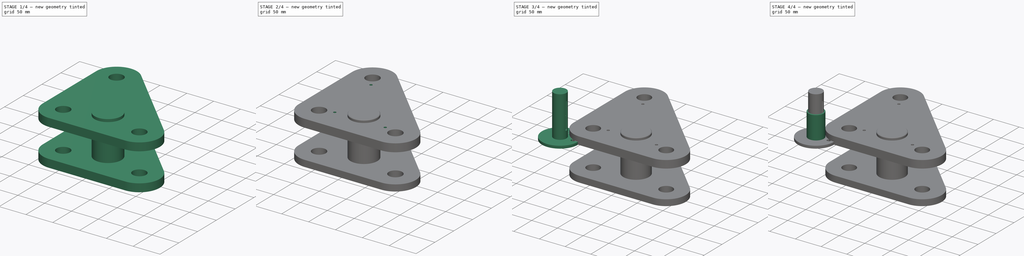
[diagram: build sequence overview — one tinted view per stage of 4, left to right]
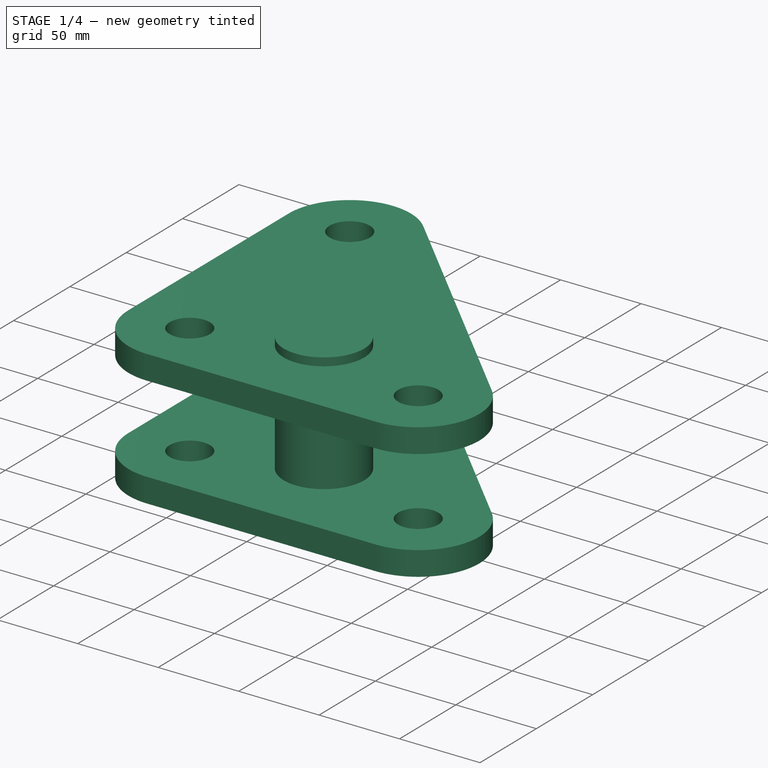
[diagram: stage 1 of 4 — iso view after this stage's code; geometry added in this stage tinted green]
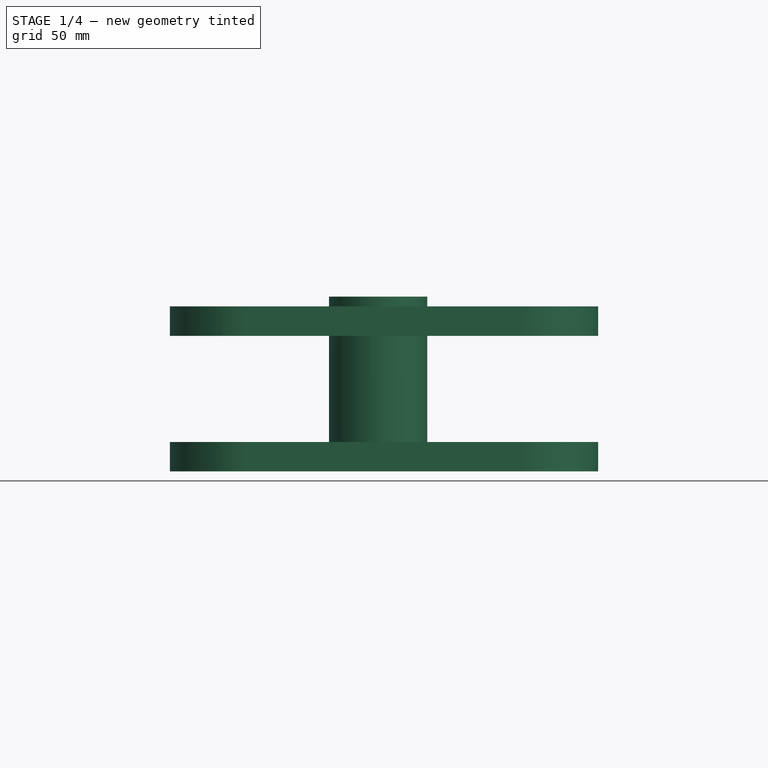
[diagram: stage 1 of 4 — front view after this stage's code; geometry added in this stage tinted green]
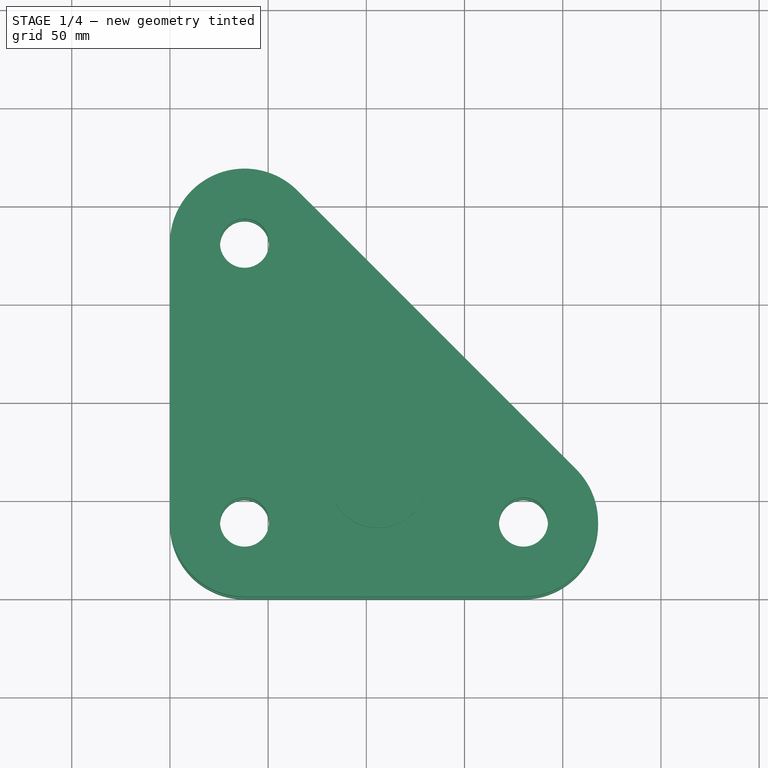
[diagram: stage 1 of 4 — top view after this stage's code; geometry added in this stage tinted green]
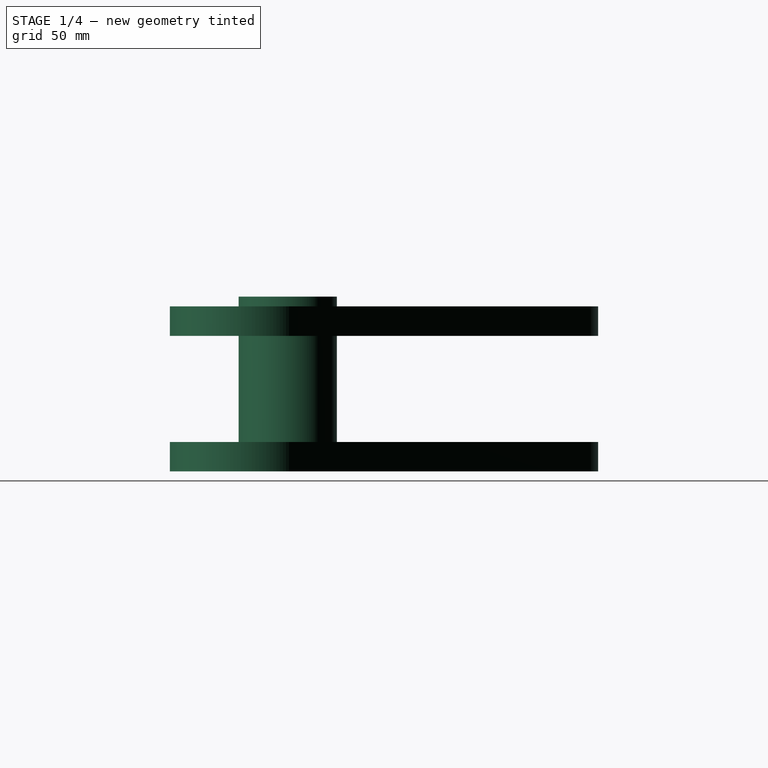
[diagram: stage 1 of 4 — right view after this stage's code; geometry added in this stage tinted green]
FCSTD DOCUMENT  (FreeCAD 0.20R29177 +426 (Git))
Label: hovair2
License: All rights reserved
LicenseURL: http://en.wikipedia.org/wiki/All_rights_reserved
objects: Sketcher::SketchObject×10, PartDesign::Plane×4, PartDesign::Pocket×3, PartDesign::Pad×3, PartDesign::Body×3, PartDesign::Chamfer×2, PartDesign::Hole×2, App::Part×2, PartDesign::Revolution×1, PartDesign::Groove×1, PartDesign::LinearPattern×1
note: 42 computed .brp shape members not serialized (recipe doc carries the construction recipe); baked Part::Feature solids carry a one-line shape summary decoded from their .brp

FEATURE [PartDesign::Body] Body  label="axe"
  Group = -> [Sketch,Revolution,DatumPlane,Sketch001,Groove,DatumPlane001,Sketch002,Pocket,Sketch003,Pocket001,Sketch005,Hole]
  Origin = -> Origin001
  Tip = -> Hole
FEATURE [Sketcher::SketchObject] Sketch006
  FullyConstrained = true
  MapMode = 5
  Support = -> [XY_Plane003]
  sketch-geometry (9):
    g0: ArcOfCircle CenterX=38 CenterY=38 CenterZ=0 NormalX=0 NormalY=0 NormalZ=1 AngleXU=0 Radius=38 StartAngle=3.14159 EndAngle=4.71239
    g1: ArcOfCircle CenterX=180 CenterY=38 CenterZ=0 NormalX=0 NormalY=0 NormalZ=1 AngleXU=0 Radius=38 StartAngle=4.71239 EndAngle=7.06858
    g2: LineSegment StartX=38 StartY=0 StartZ=0 EndX=180 EndY=0 EndZ=0
    g3: ArcOfCircle CenterX=38 CenterY=180 CenterZ=0 NormalX=0 NormalY=0 NormalZ=1 AngleXU=0 Radius=38 StartAngle=0.785398 EndAngle=3.14159
    g4: LineSegment StartX=64.8701 StartY=206.87 StartZ=0 EndX=206.87 EndY=64.8701 EndZ=0
    g5: LineSegment StartX=0 StartY=180 StartZ=0 EndX=0 EndY=38 EndZ=0
    g6: Circle CenterX=38 CenterY=180 CenterZ=0 NormalX=0 NormalY=0 NormalZ=1 AngleXU=0 Radius=12.5
    g7: Circle CenterX=180 CenterY=38 CenterZ=0 NormalX=0 NormalY=0 NormalZ=1 AngleXU=0 Radius=12.5
    g8: Circle CenterX=38 CenterY=38 CenterZ=0 NormalX=0 NormalY=0 NormalZ=1 AngleXU=0 Radius=12.5
  constraints (23):
    c: Radius(g0) = 38
    c: Tangent(g0,g-2) = 1.5708
    c: Tangent(g0,g-1) = -1.5708
    c: Radius(g1) = 38
    c: Tangent(g1,g-1) = -1.5708
    c: Distance(g0,g1) = 142
    c: Coincident(g2,g1)
    c: Coincident(g2,g0)
    c: Radius(g3) = 38
    c: Tangent(g3,g-2) = 1.5708
    c: Tangent(g1,g4) = 1.5708
    c: Tangent(g3,g4) = 1.5708
    c: Coincident(g5,g0)
    c: Coincident(g5,g3)
    c: Coincident(g4,g3)
    c: Coincident(g4,g1)
    c: Distance(g0,g3) = 142
    c: Coincident(g3,g6)
    c: Diameter(g6) = 25
    c: Coincident(g7,g1)
    c: Diameter(g7) = 25
    c: Coincident(g8,g0)
    c: Diameter(g8) = 25
FEATURE [PartDesign::Pad] Pad001  label="base de fixation des axes"
  Direction = (0,0,1)
  Length = 15
  Length2 = 10
  Profile = -> Sketch006
  ReferenceAxis = -> Sketch006 [N_Axis]
  Type = 0
FEATURE [PartDesign::Plane] DatumPlane002
  AttachmentOffset = pos=(0,0,20) rot=(0,0,1;0rad)
  Length = 291.459
  MapMode = 2
  Placement = pos=(0,0,20) rot=(0,0,1;0rad)
  ResizeMode = 0
  Support = -> [Pad001]
  Width = 291.459
FEATURE [Sketcher::SketchObject] Sketch007
  FullyConstrained = true
  MapMode = 5
  Placement = pos=(0,0,20) rot=(0,0,1;0rad)
  Support = -> [DatumPlane002]
  sketch-geometry (2):
    g0: Circle CenterX=106 CenterY=60 CenterZ=0 NormalX=0 NormalY=0 NormalZ=1 AngleXU=0 Radius=25
    g1: GeomPoint X=106 Y=60 Z=0
  constraints (4):
    c: Diameter(g0) = 50
    c: DistanceY(g0) = 60
    c: DistanceX(g0) = 106
    c: Coincident(g1,g0)
FEATURE [PartDesign::Pad] Pad002  label="cylindre entretoise"
  BaseFeature = -> Pad001
  Direction = (0,0,1)
  Length = 74
  Length2 = 10
  Profile = -> Sketch007
  ReferenceAxis = -> Sketch007 [N_Axis]
  Reversed = true
  Type = 0
FEATURE [PartDesign::LinearPattern] LinearPattern  label="base"
  BaseFeature = -> Pad002
  Direction = -> Sketch006 [N_Axis]
  Length = 69
  Occurrences = 2
  Originals = -> [Pad001]
  Reversed = true
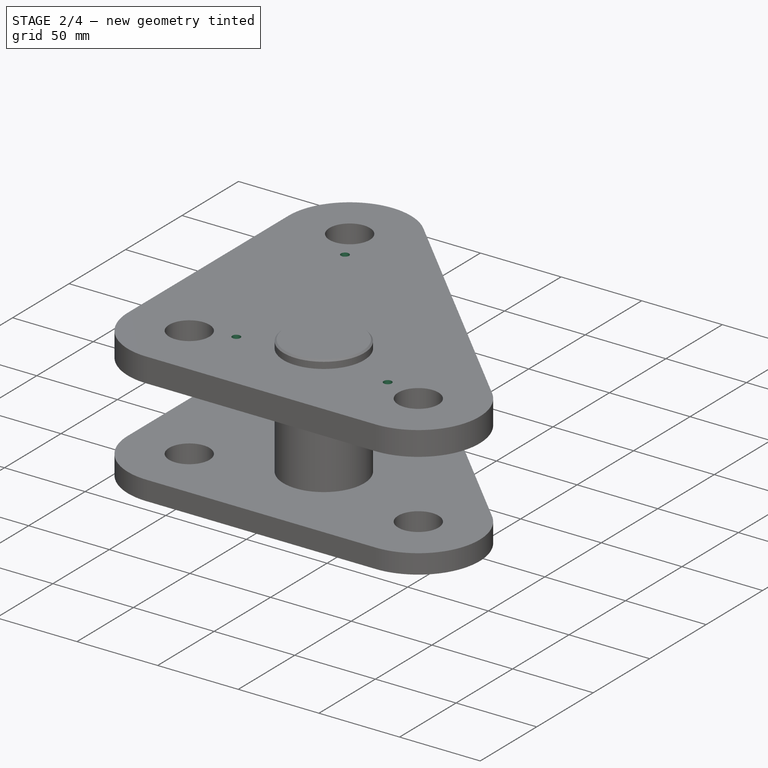
[diagram: stage 2 of 4 — iso view after this stage's code; geometry added in this stage tinted green]
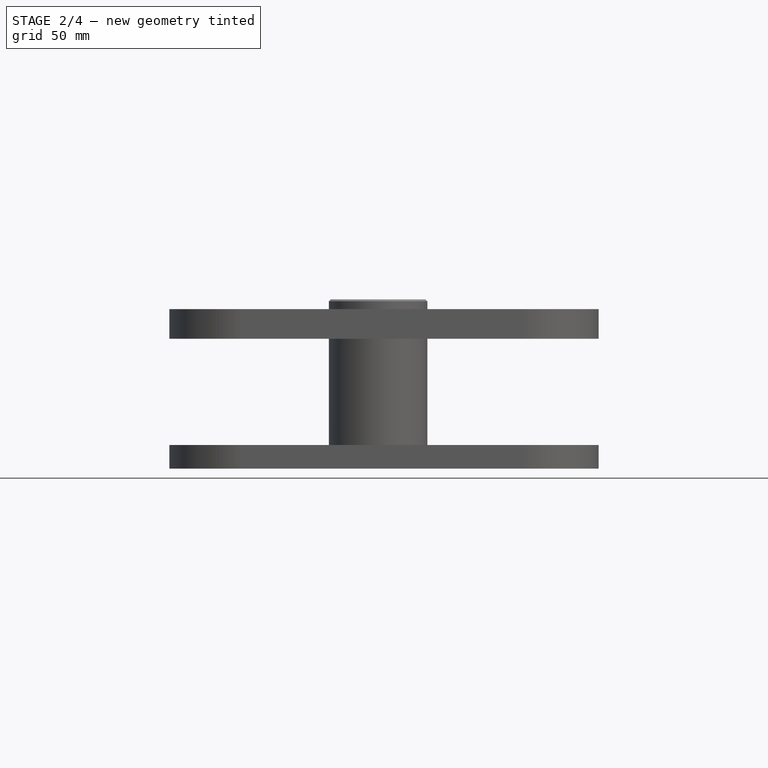
[diagram: stage 2 of 4 — front view after this stage's code; geometry added in this stage tinted green]
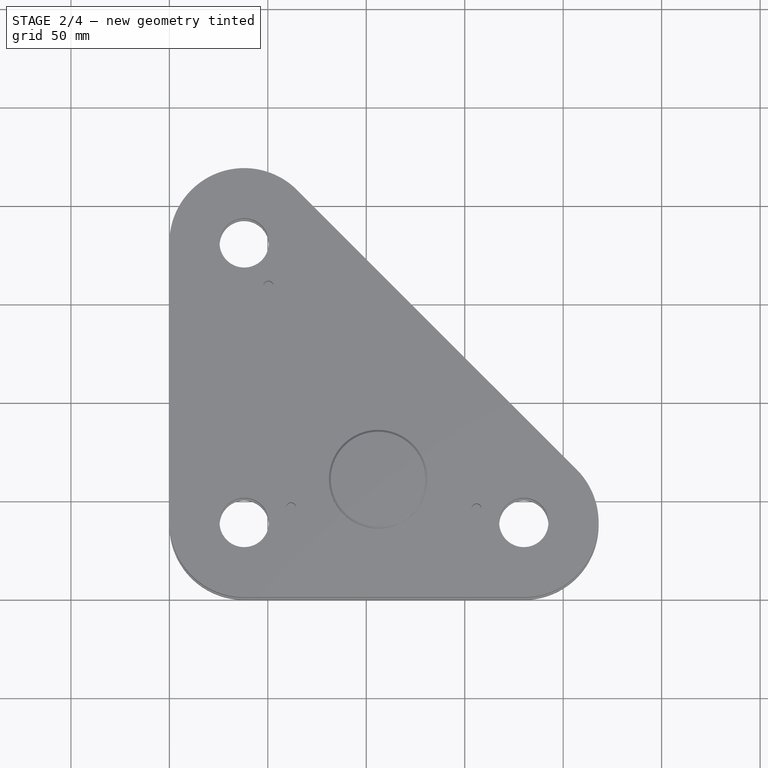
[diagram: stage 2 of 4 — top view after this stage's code; geometry added in this stage tinted green]
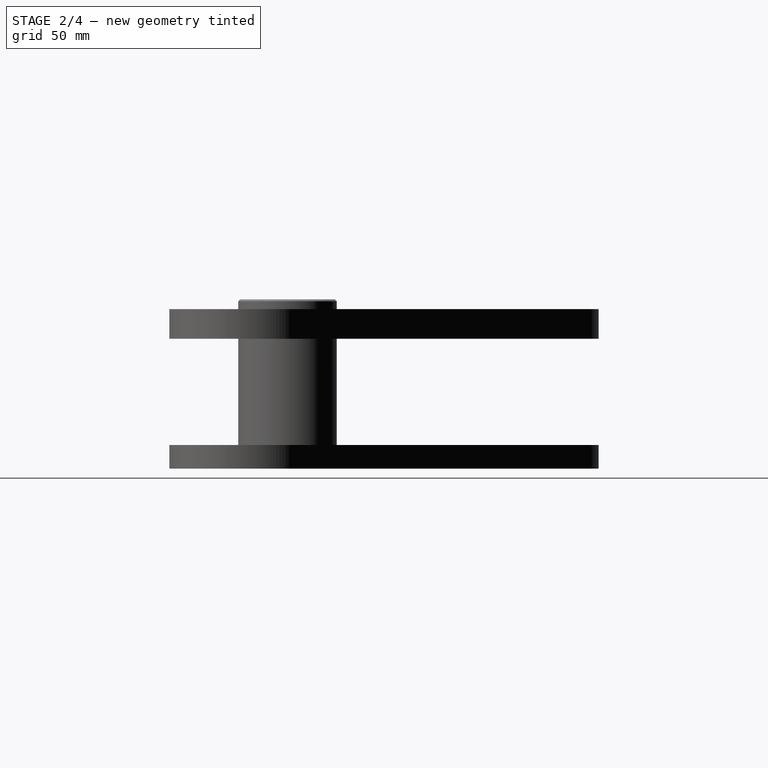
[diagram: stage 2 of 4 — right view after this stage's code; geometry added in this stage tinted green]
FEATURE [PartDesign::Plane] DatumPlane003
  Length = 272.617
  MapMode = 3
  Placement = pos=(0,0,0) rot=(1,0,0;1.5708rad)
  ResizeMode = 0
  Support = -> [LinearPattern]
  Width = 120.734
FEATURE [Sketcher::SketchObject] Sketch008
  FullyConstrained = false
  MapMode = 5
  Placement = pos=(0,0,0) rot=(1,0,0;1.5708rad)
  Support = -> [DatumPlane003]
  sketch-geometry (4):
    g0: LineSegment StartX=-26.3349 StartY=-79.5002 StartZ=0 EndX=225.794 EndY=-79.5002 EndZ=0
    g1: LineSegment StartX=225.794 StartY=-79.5002 StartZ=0 EndX=225.794 EndY=-66 EndZ=0
    g2: LineSegment StartX=225.794 StartY=-66 StartZ=0 EndX=-26.3349 EndY=-66 EndZ=0
    g3: LineSegment StartX=-26.3349 StartY=-66 StartZ=0 EndX=-26.3349 EndY=-79.5002 EndZ=0
  constraints (9):
    c: Coincident(g0,g1)
    c: Coincident(g1,g2)
    c: Coincident(g2,g3)
    c: Coincident(g3,g0)
    c: Horizontal(g0)
    c: Horizontal(g2)
    c: Vertical(g1)
    c: Vertical(g3)
    c: DistanceY(g1) = -66
FEATURE [PartDesign::Pocket] Pocket002  label="reprise epaisseur de la base"
  BaseFeature = -> LinearPattern
  Direction = (0,1,-2e-16)
  Length = 5
  Length2 = 5
  Profile = -> Sketch008
  ReferenceAxis = -> Sketch008 [N_Axis]
  Type = 1
FEATURE [Sketcher::SketchObject] Sketch009
  FullyConstrained = false
  MapMode = 5
  Placement = pos=(0,0,15) rot=(0,0,1;0rad)
  Support = -> [LinearPattern]
  sketch-geometry (9):
    g0: LineSegment StartX=38 StartY=38 StartZ=0 EndX=106 EndY=60 EndZ=0
    g1: LineSegment StartX=106 StartY=60 StartZ=0 EndX=180 EndY=38 EndZ=0
    g2: LineSegment StartX=38 StartY=180 StartZ=0 EndX=106 EndY=60 EndZ=0
    g3: GeomPoint X=50.3253 Y=158.249 Z=0
    g4: GeomPoint X=156.037 Y=45.1243 Z=0
    g5: GeomPoint X=61.7861 Y=45.6955 Z=0
    g6: Circle CenterX=50.3253 CenterY=158.249 CenterZ=0 NormalX=0 NormalY=0 NormalZ=1 AngleXU=0 Radius=3
    g7: Circle CenterX=61.7861 CenterY=45.6955 CenterZ=0 NormalX=0 NormalY=0 NormalZ=1 AngleXU=0 Radius=6.98573
    g8: Circle CenterX=156.037 CenterY=45.1243 CenterZ=0 NormalX=0 NormalY=0 NormalZ=1 AngleXU=0 Radius=7.61805
  constraints (20):
    c: DistanceX(g0) = 38
    c: DistanceY(g0) = 38
    c: DistanceX(g0) = 106
    c: DistanceY(g0) = 60
    c: DistanceY(g1) = 38
    c: DistanceX(g1) = 180
    c: Coincident(g1,g0)
    c: Coincident(g2,g0)
    c: DistanceX(g2) = 38
    c: DistanceY(g2) = 180
    c: PointOnObject(g3,g2)
    c: PointOnObject(g4,g1)
    c: PointOnObject(g5,g0)
    c: Distance(g3,g2) = 25
    c: Distance(g4,g1) = 25
    c: Distance(g0,g5) = 25
    c: Coincident(g6,g3)
    c: Diameter(g6) = 6
    c: Coincident(g7,g5)
    c: Coincident(g8,g4)
FEATURE [PartDesign::Hole] Hole001
  BaseFeature = -> Pocket002
  CustomThreadClearance = 0
  Depth = 16
  DepthType = 0
  Diameter = 5
  DrillForDepth = false
  DrillPoint = 0
  DrillPointAngle = 118
  HoleCutCountersinkAngle = 90
  HoleCutCustomValues = false
  HoleCutDepth = 0
  HoleCutDiameter = 6.7
  HoleCutType = 0
  ModelThread = false
  Profile = -> Sketch009
  Tapered = false
  TaperedAngle = 90
  ThreadClass = 0
  ThreadDepth = 16
  ThreadDepthType = 0
  ThreadDirection = 0
  ThreadFit = 0
  ThreadSize = 14
  ThreadType = 1
  Threaded = true
  UseCustomThreadClearance = false
FEATURE [PartDesign::Chamfer] Chamfer001
  Angle = 45
  Base = -> Hole001 [Edge68]
  BaseFeature = -> Hole001
  ChamferType = 0
  FlipDirection = false
  Size = 1
  Size2 = 1
  SupportTransform = false
  UseAllEdges = false
FEATURE [PartDesign::Body] Body002  label="triangle droit"
  Group = -> [Sketch006,Pad001,DatumPlane002,Sketch007,Pad002,LinearPattern,DatumPlane003,Sketch008,Pocket002,Sketch009,Hole001,Chamfer001]
  Origin = -> Origin003
  Tip = -> Chamfer001
FEATURE [App::Part] Part001
  Group = -> [Body,Body001]
  Origin = -> Origin004
  Placement = pos=(38,180,20) rot=(-0.866025,0.5,0;3.14159rad)
FEATURE [App::Part] Part  label="guidage"
  Group = -> [Body002,Part001]
  Origin = -> Origin
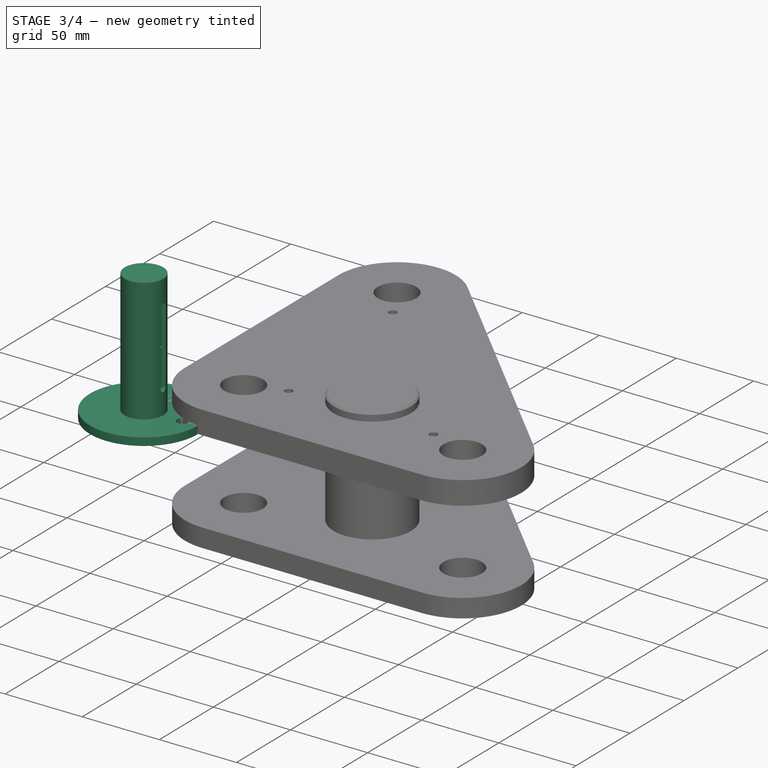
[diagram: stage 3 of 4 — iso view after this stage's code; geometry added in this stage tinted green]
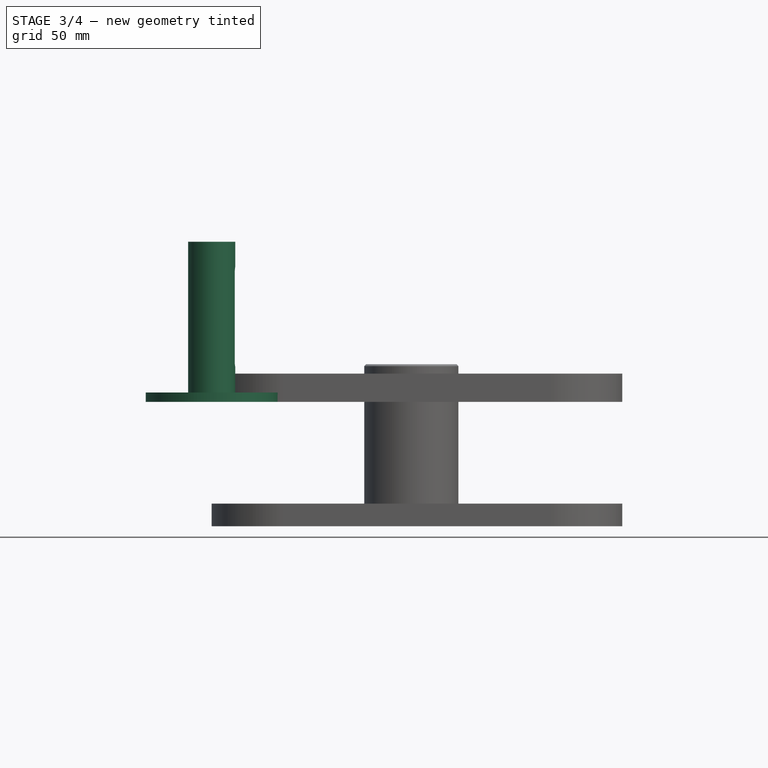
[diagram: stage 3 of 4 — front view after this stage's code; geometry added in this stage tinted green]
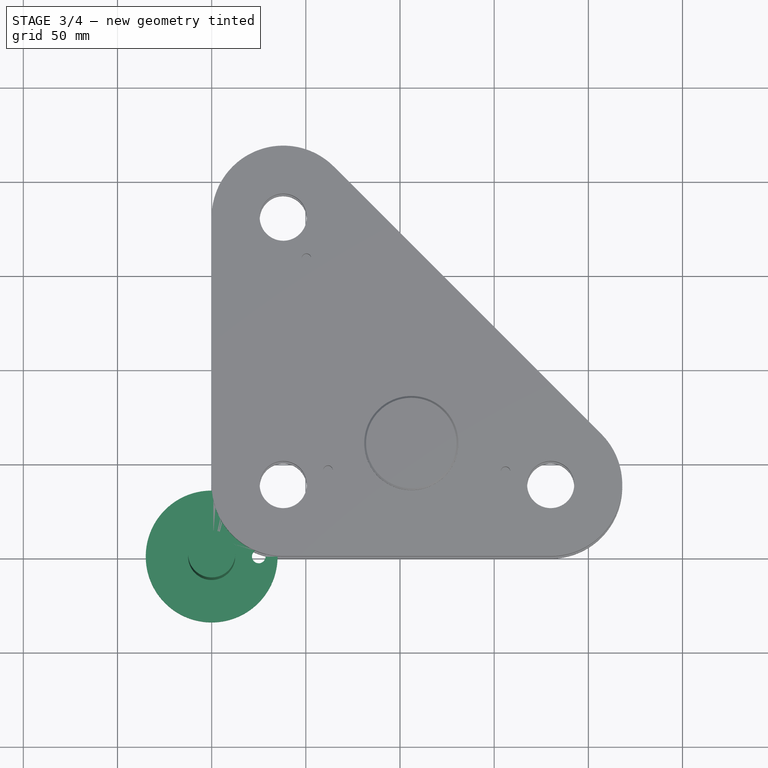
[diagram: stage 3 of 4 — top view after this stage's code; geometry added in this stage tinted green]
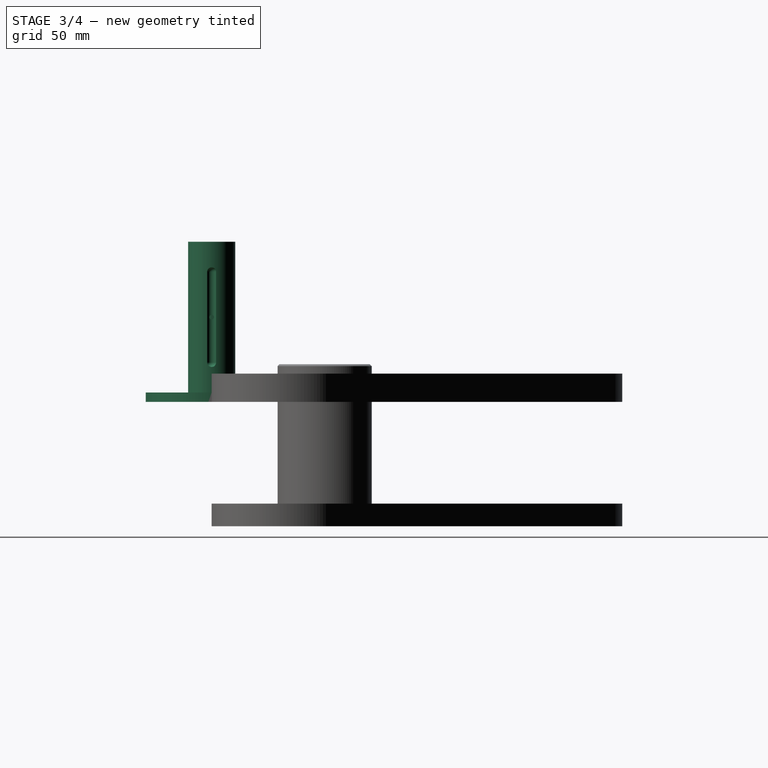
[diagram: stage 3 of 4 — right view after this stage's code; geometry added in this stage tinted green]
FEATURE [Sketcher::SketchObject] Sketch  label="corps dessin"
  FullyConstrained = true
  MapMode = 5
  Placement = pos=(0,0,0) rot=(1,0,0;1.5708rad)
  Support = -> [XZ_Plane001]
  sketch-geometry (6):
    g0: LineSegment StartX=0 StartY=85 StartZ=0 EndX=-12.5 EndY=85 EndZ=0
    g1: LineSegment StartX=-12.5 StartY=85 StartZ=0 EndX=-12.5 EndY=5 EndZ=0
    g2: LineSegment StartX=-12.5 StartY=5 StartZ=0 EndX=-35 EndY=5 EndZ=0
    g3: LineSegment StartX=-35 StartY=5 StartZ=0 EndX=-35 EndY=0 EndZ=0
    g4: LineSegment StartX=-35 StartY=0 StartZ=0 EndX=0 EndY=0 EndZ=0
    g5: LineSegment StartX=0 StartY=85 StartZ=0 EndX=0 EndY=0 EndZ=0
  constraints (17):
    c: Horizontal(g0)
    c: Coincident(g1,g0)
    c: Vertical(g1)
    c: Coincident(g2,g1)
    c: Horizontal(g2)
    c: Coincident(g3,g2)
    c: Vertical(g3)
    c: Coincident(g4,g3)
    c: Horizontal(g4)
    c: DistanceY(g2) = 5
    c: DistanceY(g0) = 85
    c: PointOnObject(g0,g-2)
    c: DistanceX(g0) = -12.5
    c: DistanceX(g3) = -35
    c: Coincident(g4,g-1)
    c: Coincident(g5,g4)
    c: Coincident(g5,g0)
FEATURE [PartDesign::Revolution] Revolution  label="corps"
  Angle = 360
  Axis = (0,-2e-16,1)
  Base = (0,0,0)
  Placement = pos=(0,0,0) rot=(1,0,0;1.5708rad)
  Profile = -> Sketch
  ReferenceAxis = -> Sketch [V_Axis]
FEATURE [PartDesign::Plane] DatumPlane
  Length = 87.3478
  MapMode = 2
  Placement = pos=(0,0,0) rot=(1,0,0;1.5708rad)
  ResizeMode = 0
  Support = -> [Revolution]
  Width = 127.527
FEATURE [Sketcher::SketchObject] Sketch001  label="rainure dessin"
  FullyConstrained = false
  MapMode = 5
  Placement = pos=(0,0,0) rot=(1,0,0;1.5708rad)
  Support = -> [DatumPlane]
  sketch-geometry (5):
    g0: LineSegment StartX=10.5 StartY=69 StartZ=0 EndX=10.5 EndY=21 EndZ=0
    g1: LineSegment StartX=13 StartY=71.5 StartZ=0 EndX=13 EndY=18.5 EndZ=0
    g2: ArcOfCircle CenterX=13 CenterY=69 CenterZ=0 NormalX=0 NormalY=0 NormalZ=1 AngleXU=0 Radius=2.5 StartAngle=1.5708 EndAngle=3.14159
    g3: ArcOfCircle CenterX=13 CenterY=21 CenterZ=0 NormalX=0 NormalY=0 NormalZ=1 AngleXU=0 Radius=2.5 StartAngle=3.14159 EndAngle=4.71239
    g4: LineSegment StartX=13 StartY=85.2446 StartZ=0 EndX=13 EndY=10.6488 EndZ=0
  constraints (16):
    c: Vertical(g0)
    c: Vertical(g1)
    c: Distance(g0) = 48
    c: Distance(g1) = 53
    c: DistanceY(g0) = 21
    c: DistanceY(g1) = 18.5
    c: PointOnObject(g2,g1)
    c: Coincident(g2,g0)
    c: Coincident(g2,g1)
    c: PointOnObject(g3,g1)
    c: Coincident(g3,g1)
    c: Coincident(g3,g0)
    c: Diameter(g2) = 5
    c: DistanceX(g1) = 13
    c: Vertical(g4)
    c: PointOnObject(g1,g4)
FEATURE [PartDesign::Groove] Groove  label="rainure"
  Angle = 360
  Axis = (0,1.66e-14,-74.5957)
  Base = (13,-1.89e-14,85.2446)
  BaseFeature = -> Revolution
  Placement = pos=(0,0,0) rot=(1,0,0;1.5708rad)
  Profile = -> Sketch001
  ReferenceAxis = -> Sketch001 [Axis0]
FEATURE [PartDesign::Plane] DatumPlane001
  AttachmentOffset = pos=(13,0,0) rot=(0,1,0;1.5708rad)
  Length = 87.4488
  MapMode = 2
  Placement = pos=(13,0,0) rot=(0.57735,0.57735,0.57735;2.0944rad)
  ResizeMode = 0
  Support = -> [Revolution]
  Width = 127.539
FEATURE [Sketcher::SketchObject] Sketch002  label="canal dessin"
  FullyConstrained = true
  MapMode = 5
  Placement = pos=(13,0,0) rot=(0.57735,0.57735,0.57735;2.0944rad)
  Support = -> [DatumPlane001]
  sketch-geometry (1):
    g0: Circle CenterX=0 CenterY=45 CenterZ=0 NormalX=0 NormalY=0 NormalZ=1 AngleXU=0 Radius=1.25
  constraints (3):
    c: PointOnObject(g0,g-2)
    c: DistanceY(g0) = 45
    c: Diameter(g0) = 2.5
FEATURE [PartDesign::Pocket] Pocket  label="canal"
  BaseFeature = -> Groove
  Direction = (-1,-2e-16,0)
  Length = 13
  Length2 = 5
  Placement = pos=(0,0,0) rot=(1,0,0;1.5708rad)
  Profile = -> Sketch002
  ReferenceAxis = -> Sketch002 [N_Axis]
  Type = 0
FEATURE [Sketcher::SketchObject] Sketch003  label="trou de fixation dessin"
  FullyConstrained = true
  MapMode = 5
  Placement = pos=(0,1.1e-15,5) rot=(0,0,1;3.14159rad)
  Support = -> [Pocket]
  sketch-geometry (1):
    g0: Circle CenterX=-25 CenterY=0 CenterZ=0 NormalX=0 NormalY=0 NormalZ=1 AngleXU=0 Radius=3.6
  constraints (3):
    c: PointOnObject(g0,g-1)
    c: DistanceX(g0) = -25
    c: Diameter(g0) = 7.2
FEATURE [PartDesign::Pocket] Pocket001  label="trou de fixation"
  BaseFeature = -> Pocket
  Direction = (0,2e-16,-1)
  Length = 5
  Length2 = 5
  Placement = pos=(0,0,0) rot=(1,0,0;1.5708rad)
  Profile = -> Sketch003
  ReferenceAxis = -> Sketch003 [N_Axis]
  Type = 1
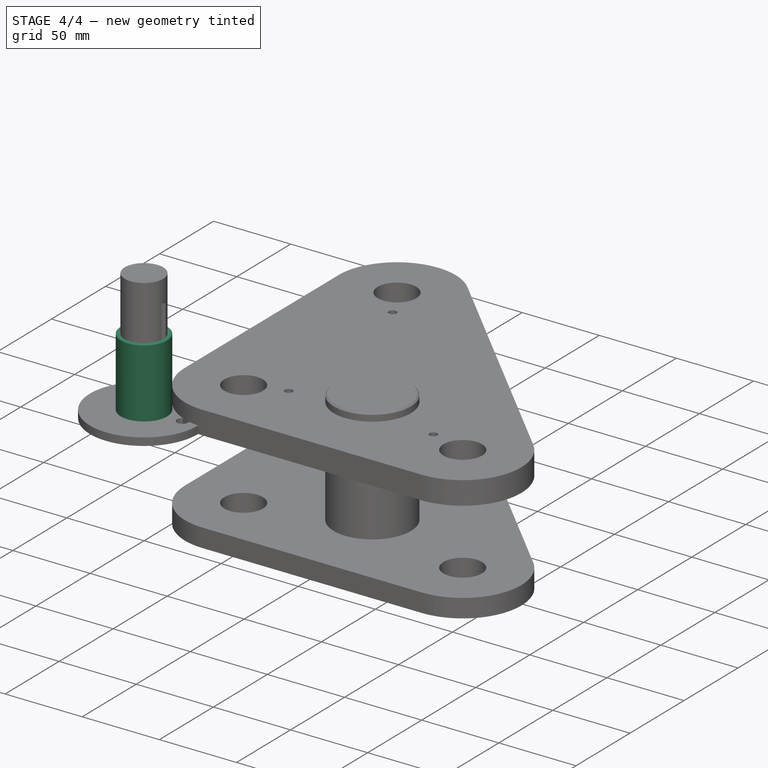
[diagram: stage 4 of 4 — iso view after this stage's code; geometry added in this stage tinted green]
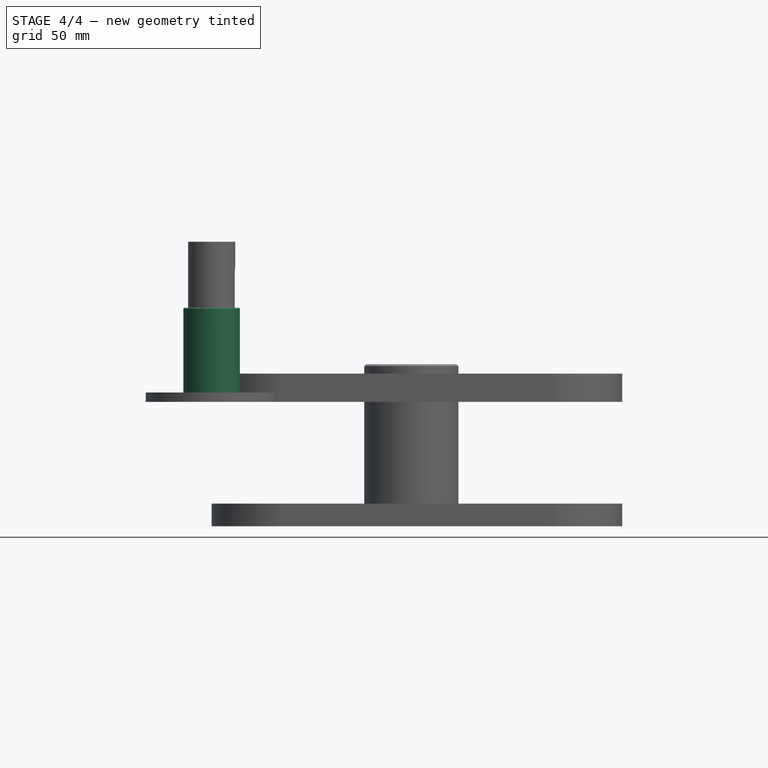
[diagram: stage 4 of 4 — front view after this stage's code; geometry added in this stage tinted green]
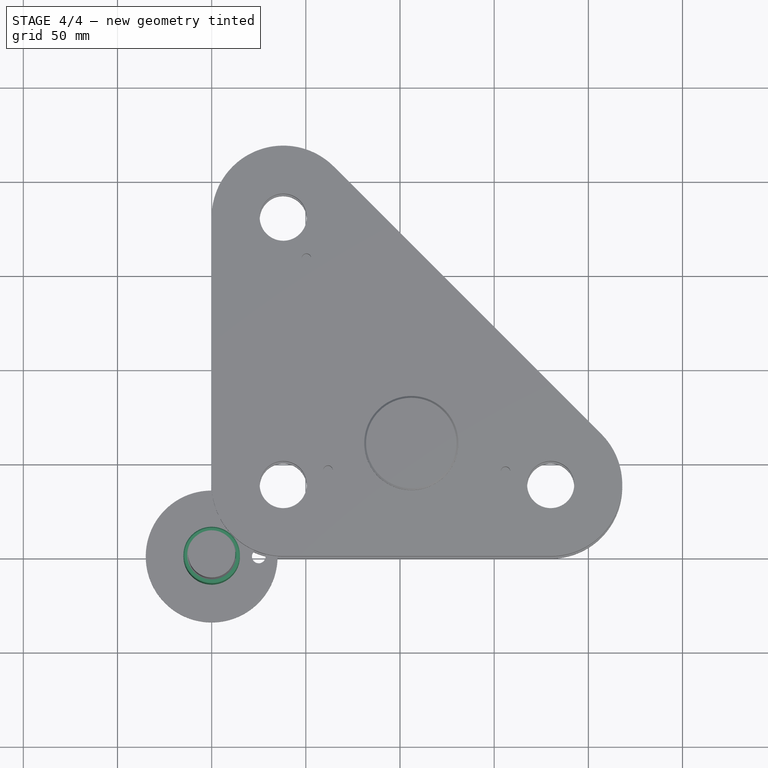
[diagram: stage 4 of 4 — top view after this stage's code; geometry added in this stage tinted green]
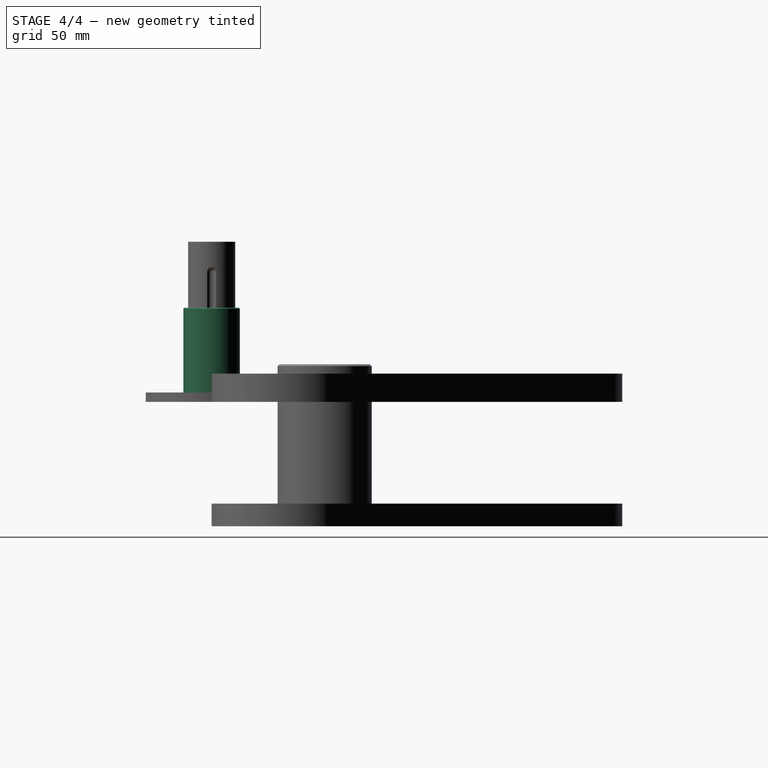
[diagram: stage 4 of 4 — right view after this stage's code; geometry added in this stage tinted green]
FEATURE [Sketcher::SketchObject] Sketch004
  FullyConstrained = true
  MapMode = 5
  Support = -> [XY_Plane002]
  sketch-geometry (2):
    g0: Circle CenterX=0 CenterY=0 CenterZ=0 NormalX=0 NormalY=0 NormalZ=1 AngleXU=0 Radius=12.5
    g1: Circle CenterX=0 CenterY=0 CenterZ=0 NormalX=0 NormalY=0 NormalZ=1 AngleXU=0 Radius=15
  constraints (4):
    c: Diameter(g0) = 25
    c: Coincident(g0,g-1)
    c: Diameter(g1) = 30
    c: Coincident(g1,g0)
FEATURE [PartDesign::Pad] Pad
  Direction = (0,0,1)
  Length = 50
  Length2 = 10
  Profile = -> Sketch004
  ReferenceAxis = -> Sketch004 [N_Axis]
  Type = 0
FEATURE [PartDesign::Chamfer] Chamfer
  Angle = 45
  Base = -> Pad [Edge3,Edge6,Edge2,Edge5]
  BaseFeature = -> Pad
  ChamferType = 0
  FlipDirection = false
  Size = 0.5
  Size2 = 1
  SupportTransform = false
  UseAllEdges = false
FEATURE [PartDesign::Body] Body001  label="bague"
  Group = -> [Sketch004,Pad,Chamfer]
  Origin = -> Origin002
  Placement = pos=(0,0,22) rot=(0,0,1;0rad)
  Tip = -> Chamfer
FEATURE [Sketcher::SketchObject] Sketch005
  FullyConstrained = false
  MapMode = 5
  Placement = pos=(0,0,0) rot=(1,0,0;3.14159rad)
  Support = -> [Pocket001]
  sketch-geometry (1):
    g0: Circle CenterX=0 CenterY=0 CenterZ=0 NormalX=0 NormalY=0 NormalZ=1 AngleXU=0 Radius=16.933
  constraints (1):
    c: Coincident(g0,g-1)
FEATURE [PartDesign::Hole] Hole
  BaseFeature = -> Pocket001
  CustomThreadClearance = 0
  Depth = 55
  DepthType = 0
  Diameter = 8.5
  DrillForDepth = false
  DrillPoint = 1
  DrillPointAngle = 118
  HoleCutCountersinkAngle = 90
  HoleCutCustomValues = false
  HoleCutDepth = 0
  HoleCutDiameter = 0
  HoleCutType = 0
  ModelThread = false
  Placement = pos=(0,0,0) rot=(1,0,0;1.5708rad)
  Profile = -> Sketch005
  Tapered = false
  TaperedAngle = 90
  ThreadClass = 0
  ThreadDepth = 55
  ThreadDepthType = 0
  ThreadDirection = 0
  ThreadFit = 0
  ThreadSize = 18
  ThreadType = 1
  Threaded = true
  UseCustomThreadClearance = false
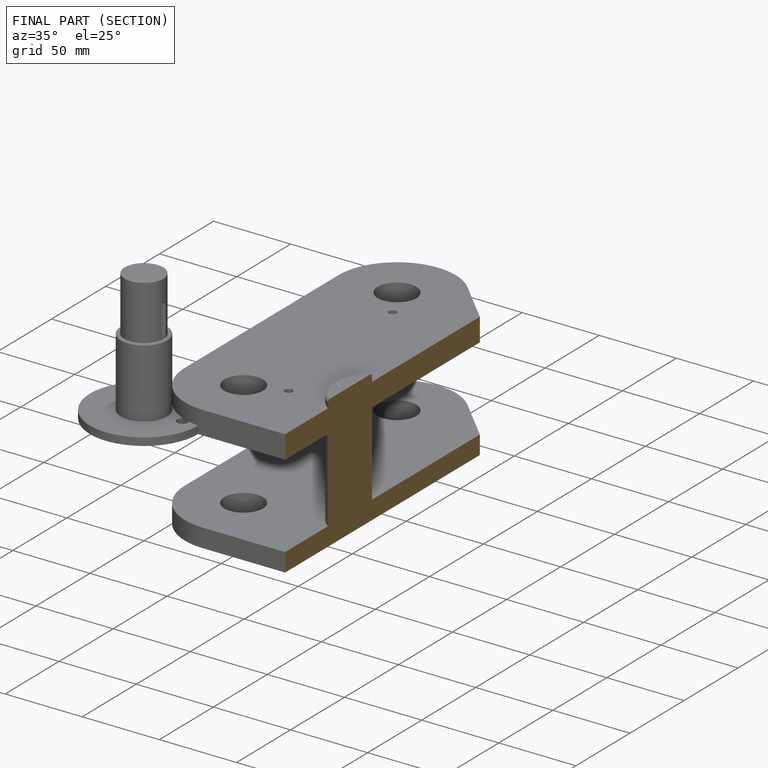
[diagram: finished part — half-section view (interior)]
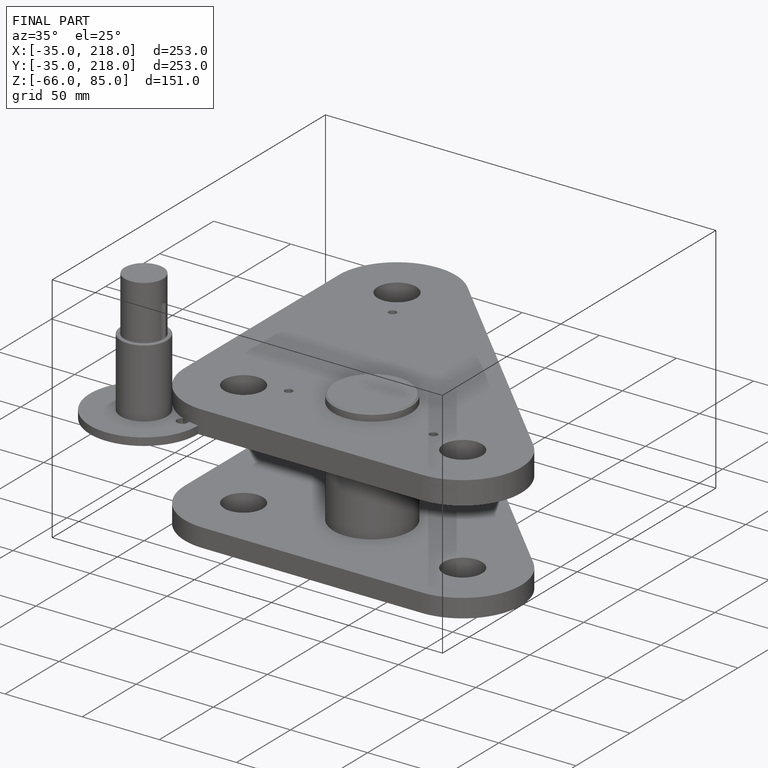
[diagram: finished part — iso view with bounding-box wireframe]
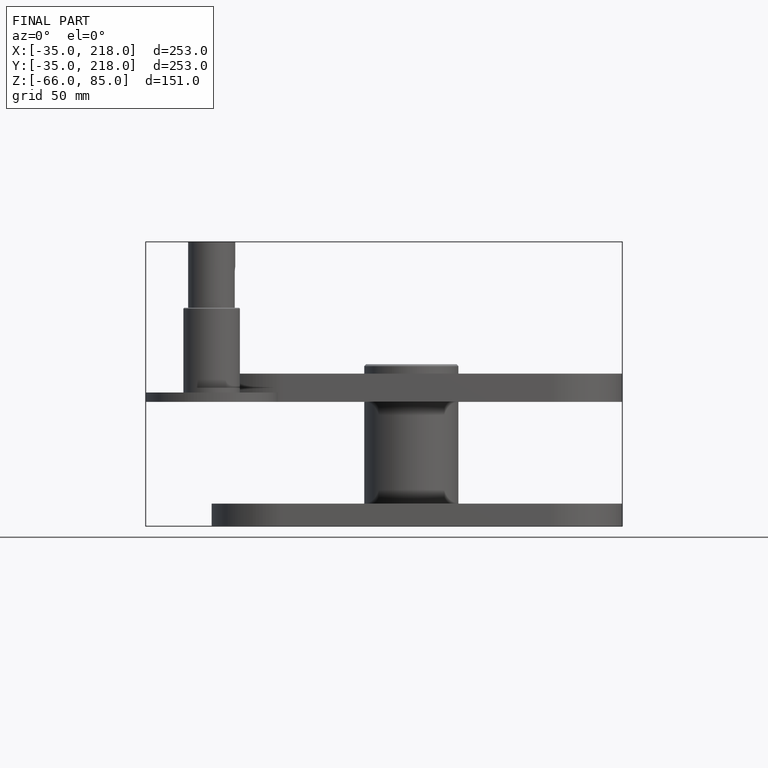
[diagram: finished part — front view with bounding-box wireframe]
